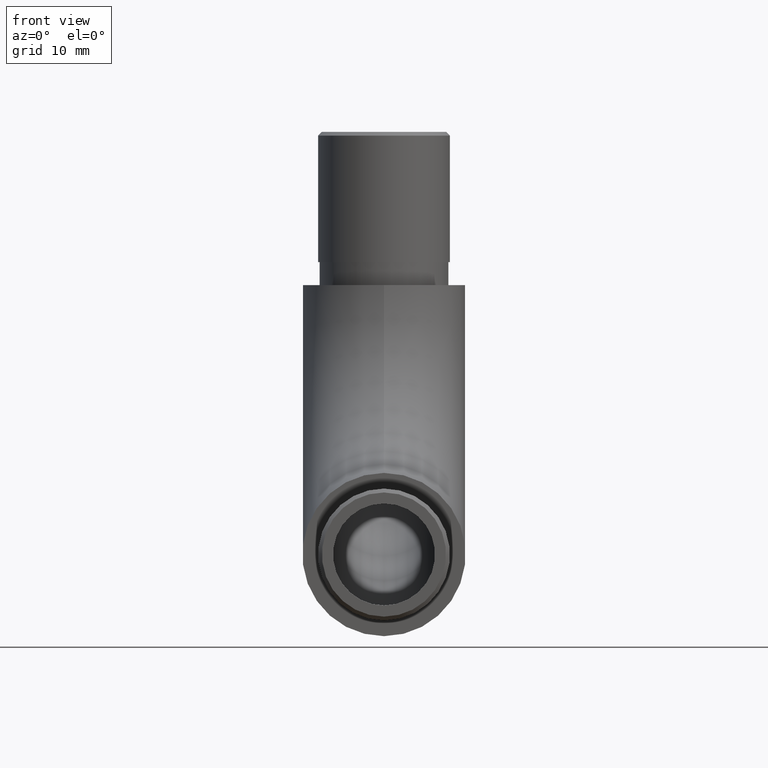
[diagram: clean part render]
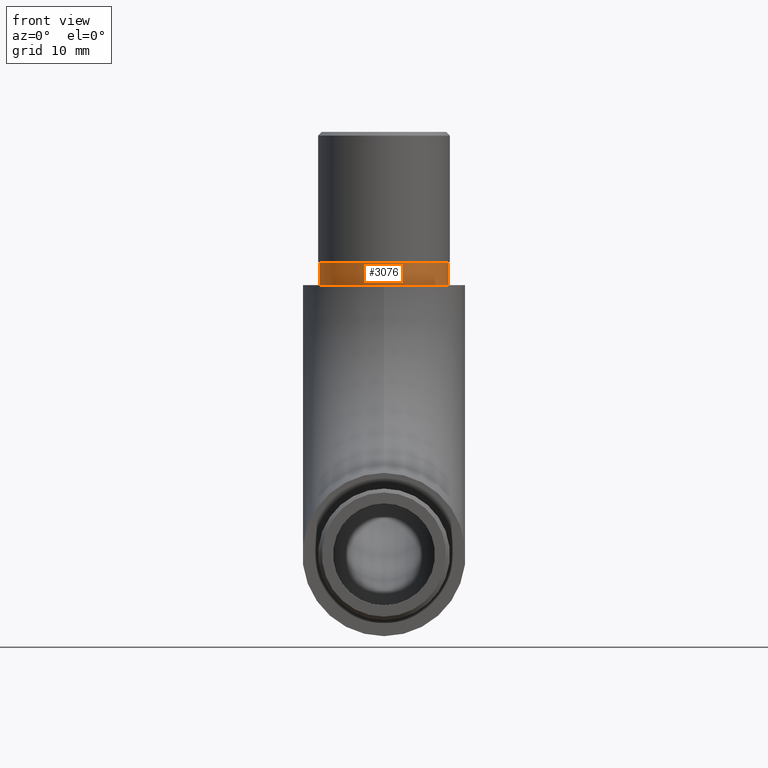
[diagram: same view with one face highlighted and labeled with its STEP entity id]
A machine part, front view. The second image highlights one B-rep face of the part: STEP entity #3076.
In plain terms, the highlighted cylindrical surface (bore or boss wall) has radius 8.4 mm, axis along (-0, -0, -1).
Its self-contained STEP definition (entity closure, byte-faithful):
#902 = VERTEX_POINT ( 'NONE', #8841 ) ;
#1007 = ORIENTED_EDGE ( 'NONE', *, *, #5081, .T. ) ;
#1054 = DIRECTION ( 'NONE',  ( -0.0000000000000000000, -0.0000000000000000000, -1.000000000000000000 ) ) ;
#2852 = AXIS2_PLACEMENT_3D ( 'NONE', #9633, #5206, #12738 ) ;
#3076 = ADVANCED_FACE ( 'NONE', ( #13759, #11375 ), #9200, .T. ) ;
#3194 = CARTESIAN_POINT ( 'NONE',  ( 0.0000000000000000000, 35.14999999999999900, 48.80000000000001100 ) ) ;
#3379 = DIRECTION ( 'NONE',  ( 1.000000000000000000, 0.0000000000000000000, 0.0000000000000000000 ) ) ;
#3413 = CARTESIAN_POINT ( 'NONE',  ( 8.400000000000002100, 35.14999999999999900, 48.80000000000001100 ) ) ;
#3798 = VERTEX_POINT ( 'NONE', #3413 ) ;
#3925 = ORIENTED_EDGE ( 'NONE', *, *, #6743, .F. ) ;
#4364 = DIRECTION ( 'NONE',  ( 0.0000000000000000000, 0.0000000000000000000, 1.000000000000000000 ) ) ;
#5081 = EDGE_CURVE ( 'NONE', #902, #902, #6795, .T. ) ;
#5206 = DIRECTION ( 'NONE',  ( 0.0000000000000000000, 0.0000000000000000000, 1.000000000000000000 ) ) ;
#6281 = DIRECTION ( 'NONE',  ( -1.000000000000000000, 0.0000000000000000000, 0.0000000000000000000 ) ) ;
#6743 = EDGE_CURVE ( 'NONE', #3798, #3798, #12760, .T. ) ;
#6795 = CIRCLE ( 'NONE', #10242, 8.400000000000002100 ) ;
#7796 = EDGE_LOOP ( 'NONE', ( #1007 ) ) ;
#8827 = EDGE_LOOP ( 'NONE', ( #3925 ) ) ;
#8841 = CARTESIAN_POINT ( 'NONE',  ( 8.400000000000002100, 35.14999999999999900, 45.80000000000000400 ) ) ;
#9200 = CYLINDRICAL_SURFACE ( 'NONE', #13845, 8.400000000000002100 ) ;
#9633 = CARTESIAN_POINT ( 'NONE',  ( 0.0000000000000000000, 35.14999999999999900, 48.80000000000001100 ) ) ;
#10242 = AXIS2_PLACEMENT_3D ( 'NONE', #10789, #4364, #3379 ) ;
#10789 = CARTESIAN_POINT ( 'NONE',  ( 0.0000000000000000000, 35.14999999999999900, 45.80000000000000400 ) ) ;
#11375 = FACE_OUTER_BOUND ( 'NONE', #7796, .T. ) ;
#12738 = DIRECTION ( 'NONE',  ( 1.000000000000000000, 0.0000000000000000000, 0.0000000000000000000 ) ) ;
#12760 = CIRCLE ( 'NONE', #2852, 8.400000000000002100 ) ;
#13759 = FACE_OUTER_BOUND ( 'NONE', #8827, .T. ) ;
#13845 = AXIS2_PLACEMENT_3D ( 'NONE', #3194, #1054, #6281 ) ;